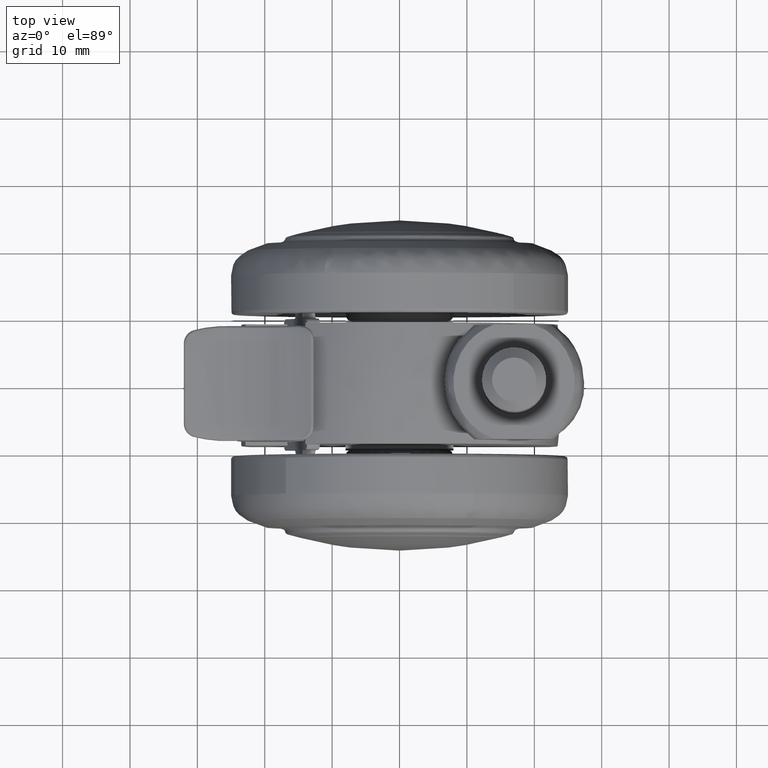
[diagram: clean part render]
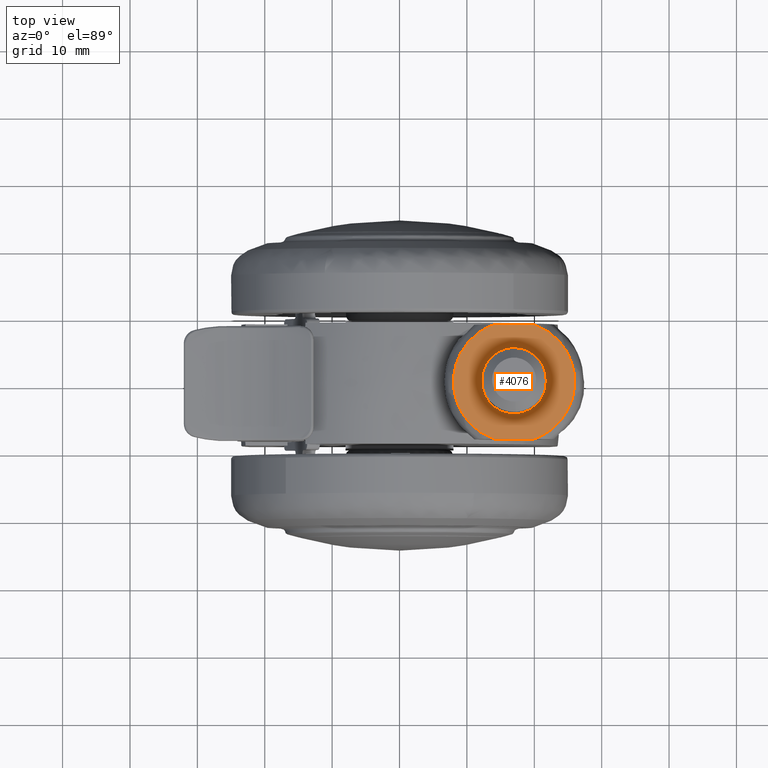
[diagram: same view with one face highlighted and labeled with its STEP entity id]
A machine part, top view. The second image highlights one B-rep face of the part: STEP entity #4076.
In plain terms, the highlighted face is a freeform B-spline surface patch.
Its self-contained STEP definition (entity closure, byte-faithful):
#2327=CARTESIAN_POINT('',(17.041560125493739,4.762318658591338,32.500000002522903));
#2328=VERTEX_POINT('',#2327);
#2334=CARTESIAN_POINT('',(12.237500000000180,-3.459513E-015,32.500000002522903));
#2335=VERTEX_POINT('',#2334);
#2336=CARTESIAN_POINT('',(17.041560125493739,4.762318658591338,32.500000002522910));
#2337=CARTESIAN_POINT('',(17.020780458466341,4.762499999999817,32.500000002522910));
#2338=CARTESIAN_POINT('',(17.0,4.762499999999817,32.500000002522903));
#2339=CARTESIAN_POINT('',(12.237500000000180,4.762499999999816,32.500000002522903));
#2340=CARTESIAN_POINT('',(12.237500000000180,-3.459513E-015,32.500000002522903));
#2348=(BOUNDED_CURVE()B_SPLINE_CURVE(2,(#2336,#2337,#2338,#2339,#2340),.UNSPECIFIED.,.F.,.U.)B_SPLINE_CURVE_WITH_KNOTS((3,2,3),(0.248460105651495,0.250000000000000,0.500000000000000),.UNSPECIFIED.)CURVE()GEOMETRIC_REPRESENTATION_ITEM()RATIONAL_B_SPLINE_CURVE((0.996414028069122,0.998195901550535,1.0,0.707106781186548,1.0))REPRESENTATION_ITEM(''));
#2349=EDGE_CURVE('',#2328,#2335,#2348,.T.);
#2351=CARTESIAN_POINT('',(21.762499999999829,-3.459513E-015,32.500000002522903));
#2352=VERTEX_POINT('',#2351);
#2353=CARTESIAN_POINT('',(12.237500000000180,-3.459513E-015,32.500000002522903));
#2354=CARTESIAN_POINT('',(12.237500000000180,-4.762499999999825,32.500000002522903));
#2355=CARTESIAN_POINT('',(17.0,-4.762499999999824,32.500000002522903));
#2356=CARTESIAN_POINT('',(21.762499999999829,-4.762499999999825,32.500000002522903));
#2357=CARTESIAN_POINT('',(21.762499999999829,-3.459513E-015,32.500000002522903));
#2365=(BOUNDED_CURVE()B_SPLINE_CURVE(2,(#2353,#2354,#2355,#2356,#2357),.UNSPECIFIED.,.F.,.U.)B_SPLINE_CURVE_WITH_KNOTS((3,2,3),(0.500000000000000,0.750000000000000,1.0),.UNSPECIFIED.)CURVE()GEOMETRIC_REPRESENTATION_ITEM()RATIONAL_B_SPLINE_CURVE((1.0,0.707106781186548,1.0,0.707106781186548,1.0))REPRESENTATION_ITEM(''));
#2366=EDGE_CURVE('',#2335,#2352,#2365,.T.);
#2368=CARTESIAN_POINT('',(21.639713954488741,1.074458314929329,32.500000002522910));
#2369=VERTEX_POINT('',#2368);
#2370=CARTESIAN_POINT('',(21.762499999999829,-3.459513E-015,32.500000002522903));
#2371=CARTESIAN_POINT('',(21.762499999999822,0.544244977845591,32.500000002522903));
#2372=CARTESIAN_POINT('',(21.639713954488737,1.074458314929329,32.500000002522910));
#2380=(BOUNDED_CURVE()B_SPLINE_CURVE(2,(#2370,#2371,#2372),.UNSPECIFIED.,.F.,.U.)B_SPLINE_CURVE_WITH_KNOTS((3,3),(0.0,0.038577028222724),.UNSPECIFIED.)CURVE()GEOMETRIC_REPRESENTATION_ITEM()RATIONAL_B_SPLINE_CURVE((1.0,0.954804200126355,0.923556557430904))REPRESENTATION_ITEM(''));
#2381=EDGE_CURVE('',#2352,#2369,#2380,.T.);
#2419=CARTESIAN_POINT('',(21.639713954488737,1.074458314929329,32.500000002522910));
#2420=CARTESIAN_POINT('',(20.793266567923848,4.729578012190575,32.500000002522903));
#2421=CARTESIAN_POINT('',(17.041560125493739,4.762318658591338,32.500000002522910));
#2429=(BOUNDED_CURVE()B_SPLINE_CURVE(2,(#2419,#2420,#2421),.UNSPECIFIED.,.F.,.U.)B_SPLINE_CURVE_WITH_KNOTS((3,3),(0.038577028222724,0.248460105651495),.UNSPECIFIED.)CURVE()GEOMETRIC_REPRESENTATION_ITEM()RATIONAL_B_SPLINE_CURVE((0.923556557430904,0.753549905455244,0.996414028069122))REPRESENTATION_ITEM(''));
#2430=EDGE_CURVE('',#2369,#2328,#2429,.T.);
#3682=CARTESIAN_POINT('',(14.041962204574659,8.500000000000000,32.500000000000000));
#3683=VERTEX_POINT('',#3682);
#3684=CARTESIAN_POINT('',(19.958037793544850,8.499999994596450,32.500000005045798));
#3685=VERTEX_POINT('',#3684);
#3686=CARTESIAN_POINT('',(14.041962204574659,8.500000000000000,32.500000000000000));
#3687=CARTESIAN_POINT('',(19.958037793544850,8.499999994596450,32.500000005045798));
#3688=QUASI_UNIFORM_CURVE('',1,(#3686,#3687),.UNSPECIFIED.,.F.,.U.);
#3689=EDGE_CURVE('',#3683,#3685,#3688,.T.);
#3831=CARTESIAN_POINT('',(14.041962204574659,-8.500000000000000,32.500000000000000));
#3832=VERTEX_POINT('',#3831);
#3905=CARTESIAN_POINT('',(19.958037795425351,-8.500000000000000,32.500000000000000));
#3906=VERTEX_POINT('',#3905);
#3967=CARTESIAN_POINT('',(14.041962204574659,-8.500000000000000,32.500000000000000));
#3968=CARTESIAN_POINT('',(19.958037795425351,-8.500000000000000,32.500000000000000));
#3969=QUASI_UNIFORM_CURVE('',1,(#3967,#3968),.UNSPECIFIED.,.F.,.U.);
#3970=EDGE_CURVE('',#3832,#3906,#3969,.T.);
#4026=CARTESIAN_POINT('',(19.958037793544850,8.499999994596452,32.500000005045798));
#4027=CARTESIAN_POINT('',(25.999999305343277,6.397370522784126,32.500000005045813));
#4028=CARTESIAN_POINT('',(25.999999305343270,0.0,32.500000005045798));
#4029=CARTESIAN_POINT('',(25.999999305343277,-6.397370522784093,32.500000005045813));
#4030=CARTESIAN_POINT('',(19.958037795425351,-8.500000000000000,32.500000000000000));
#4038=(BOUNDED_CURVE()B_SPLINE_CURVE(2,(#4026,#4027,#4028,#4029,#4030),.UNSPECIFIED.,.F.,.U.)B_SPLINE_CURVE_WITH_KNOTS((3,2,3),(0.0,0.500000000000000,1.0),.UNSPECIFIED.)CURVE()GEOMETRIC_REPRESENTATION_ITEM()RATIONAL_B_SPLINE_CURVE((1.0,0.815067755256454,1.0,0.815067755256454,1.0))REPRESENTATION_ITEM(''));
#4039=EDGE_CURVE('',#3685,#3906,#4038,.T.);
#4045=CARTESIAN_POINT('',(7.100900967911564,-9.349149967050700,32.500000002522903));
#4046=CARTESIAN_POINT('',(26.899099675818551,-9.349149967050700,32.500000002522903));
#4047=CARTESIAN_POINT('',(7.100900967911564,9.349150423026234,32.500000002522903));
#4048=CARTESIAN_POINT('',(26.899099675818551,9.349150423026234,32.500000002522903));
#4049=B_SPLINE_SURFACE_WITH_KNOTS('',1,1,((#4045,#4047),(#4046,#4048)),.UNSPECIFIED.,.F.,.F.,.U.,(2,2),(2,2),(0.0,19.798198707906980),(0.0,18.698300390076930),.UNSPECIFIED.);
#4050=ORIENTED_EDGE('',*,*,#3689,.F.);
#4051=CARTESIAN_POINT('',(14.041962204574659,-8.500000000000000,32.500000000000000));
#4052=CARTESIAN_POINT('',(8.000000694656734,-6.397370522784104,32.500000005045798));
#4053=CARTESIAN_POINT('',(8.000000694656732,0.0,32.500000005045798));
#4054=CARTESIAN_POINT('',(8.000000694656734,6.397370522784100,32.500000005045798));
#4055=CARTESIAN_POINT('',(14.041962204574659,8.500000000000000,32.500000000000000));
#4063=(BOUNDED_CURVE()B_SPLINE_CURVE(2,(#4051,#4052,#4053,#4054,#4055),.UNSPECIFIED.,.F.,.U.)B_SPLINE_CURVE_WITH_KNOTS((3,2,3),(0.0,0.500000000000000,1.0),.UNSPECIFIED.)CURVE()GEOMETRIC_REPRESENTATION_ITEM()RATIONAL_B_SPLINE_CURVE((1.0,0.815067755256454,1.0,0.815067755256454,1.0))REPRESENTATION_ITEM(''));
#4064=EDGE_CURVE('',#3832,#3683,#4063,.T.);
#4065=ORIENTED_EDGE('',*,*,#4064,.F.);
#4066=ORIENTED_EDGE('',*,*,#3970,.T.);
#4067=ORIENTED_EDGE('',*,*,#4039,.F.);
#4068=EDGE_LOOP('',(#4050,#4065,#4066,#4067));
#4069=FACE_OUTER_BOUND('',#4068,.T.);
#4070=ORIENTED_EDGE('',*,*,#2366,.F.);
#4071=ORIENTED_EDGE('',*,*,#2349,.F.);
#4072=ORIENTED_EDGE('',*,*,#2430,.F.);
#4073=ORIENTED_EDGE('',*,*,#2381,.F.);
#4074=EDGE_LOOP('',(#4070,#4071,#4072,#4073));
#4075=FACE_BOUND('',#4074,.T.);
#4076=ADVANCED_FACE('',(#4069,#4075),#4049,.T.);